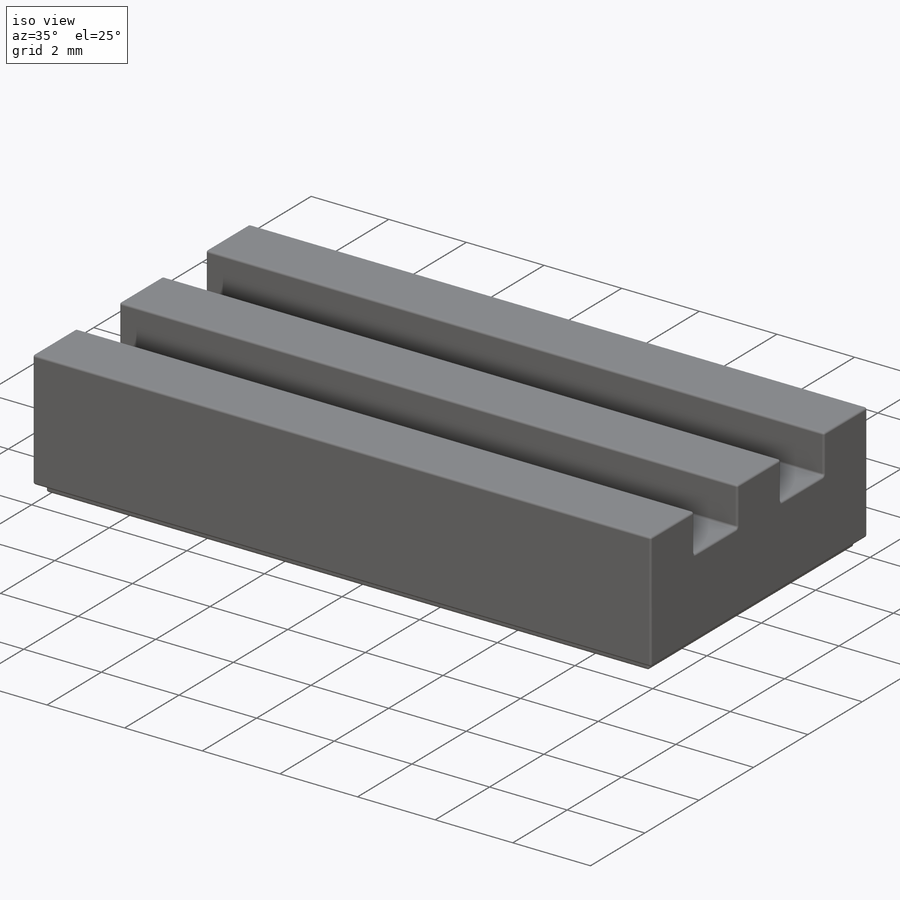
[diagram: iso view]
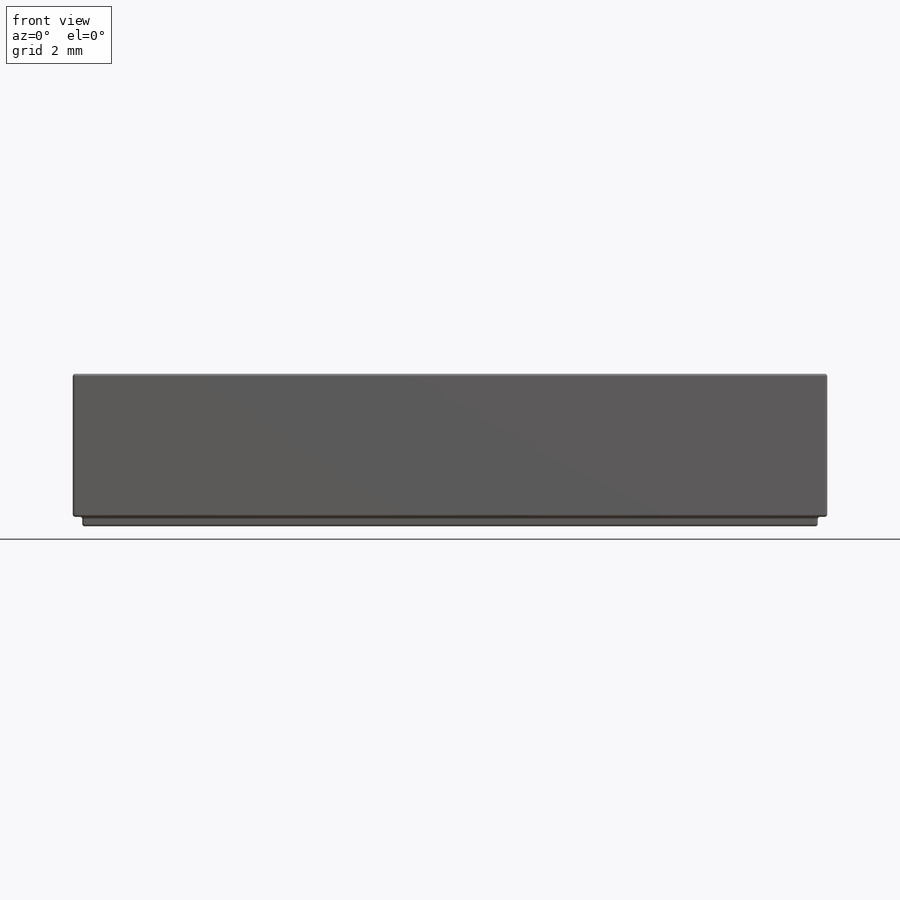
[diagram: front view]
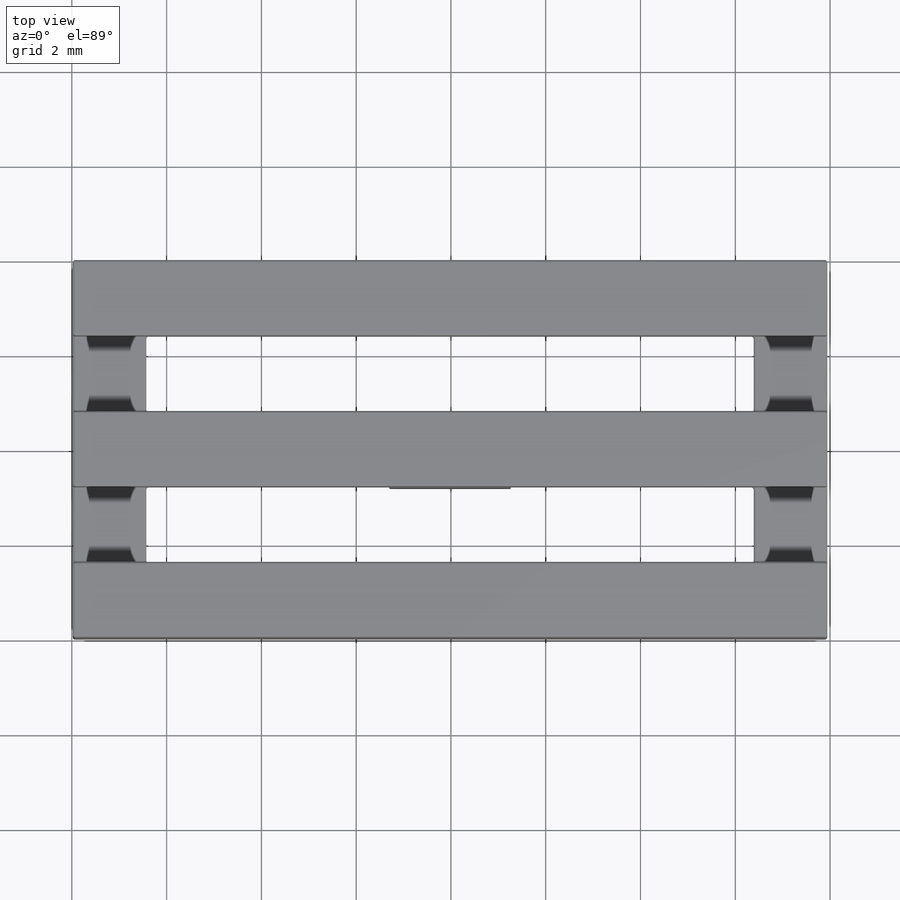
[diagram: top view]
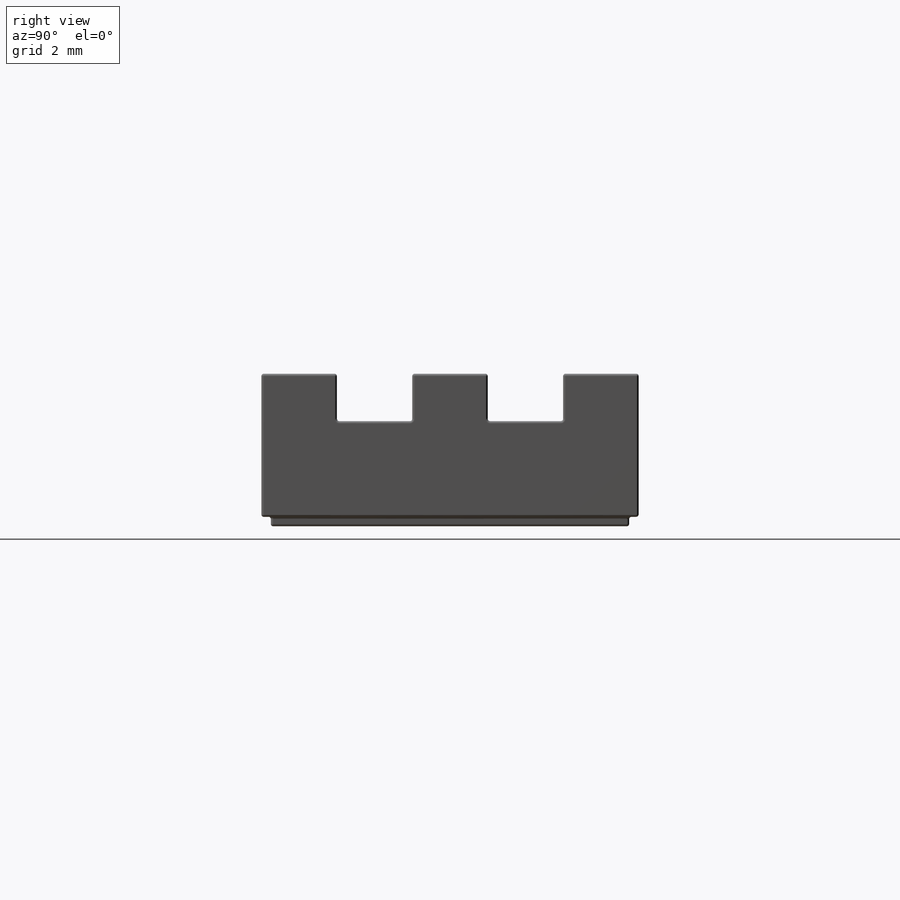
[diagram: right view]
SOLIDWORKS PART (.sldprt)
format: sldprt  version: not decoded by parser v0  size: 475,136 bytes
history: native  units: mm
features: sketch x6, cut_extrude x4, extrude x2, material x1, pattern_linear x1, shell x1, fillet x1 (+14 scaffold rows collapsed)
feature tree (30):
  scaffold x14  (default folders/planes/origin — collapsed)
  material  "Grey"
  sketch  "Sketch1"  dims[D1=7.96mm]
  extrude  "Extrude1"  Depth=3.22mm
  pattern_linear  "LPattern1"  Count1=2 Count2=1 Spacing1=7.96mm Spacing2=10mm
  shell  "Shell1"  Thickness=1.55mm
  sketch  "Sketch4"
  cut_extrude  "Extrude3"  Depth=0.14mm
  sketch  "Sketch5"  dims[D1=3.0mm D2=0.86mm]
  sketch  "Sketch7"  dims[D1=0.2mm]
  cut_extrude  "Extrude6"  Depth=0.2mm
  extrude  "Extrude7"  [1 undecoded]
  sketch  "Sketch8"  dims[D1=1.592mm D2=1.592mm D3=1.592mm D4=1.0mm]
  cut_extrude  "Extrude8"  [1 undecoded]
  sketch  "Sketch10"
  cut_extrude  "Extrude9"  [1 undecoded]
  fillet  "Fillet3"  Radius=0.05mm
decode coverage: 10 of 15 modeling features carry decoded parameters
note: 3 parameter values undecoded
summary: no parameter record found for 3 features
note: suppression state not decoded; provenance and decode notes live in map.json
